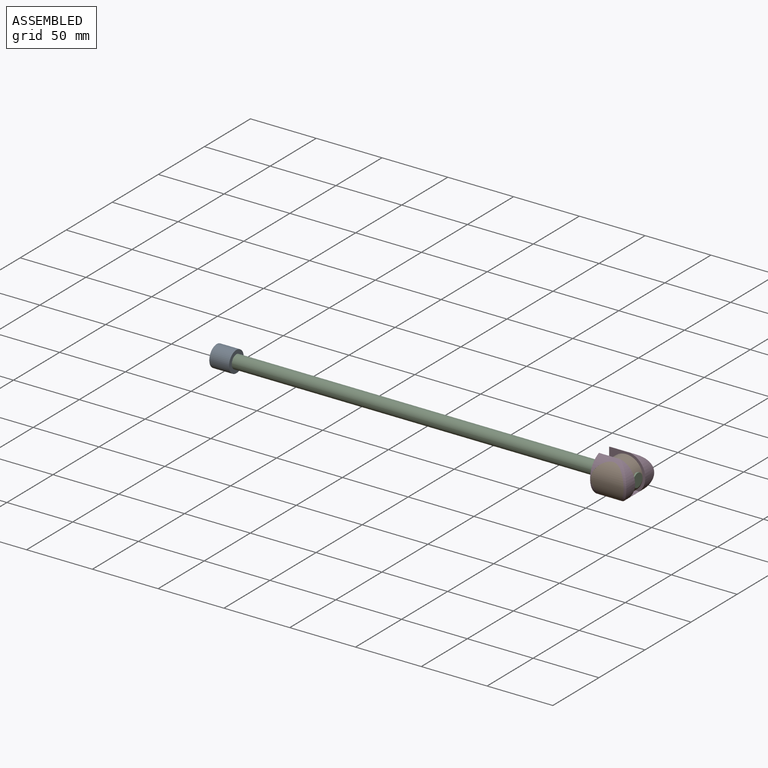
[diagram: assembled view]
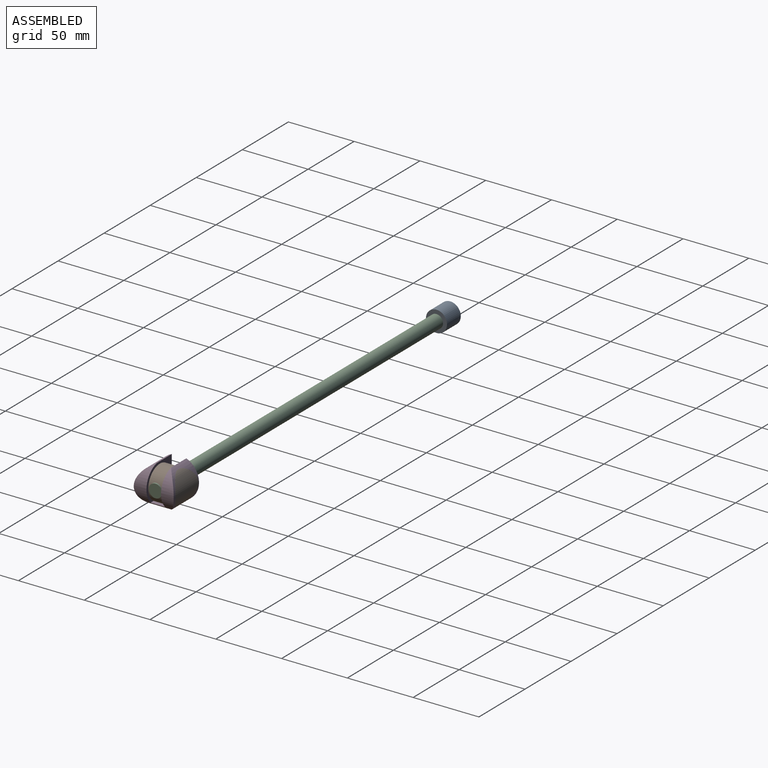
[diagram: assembled view, second angle]
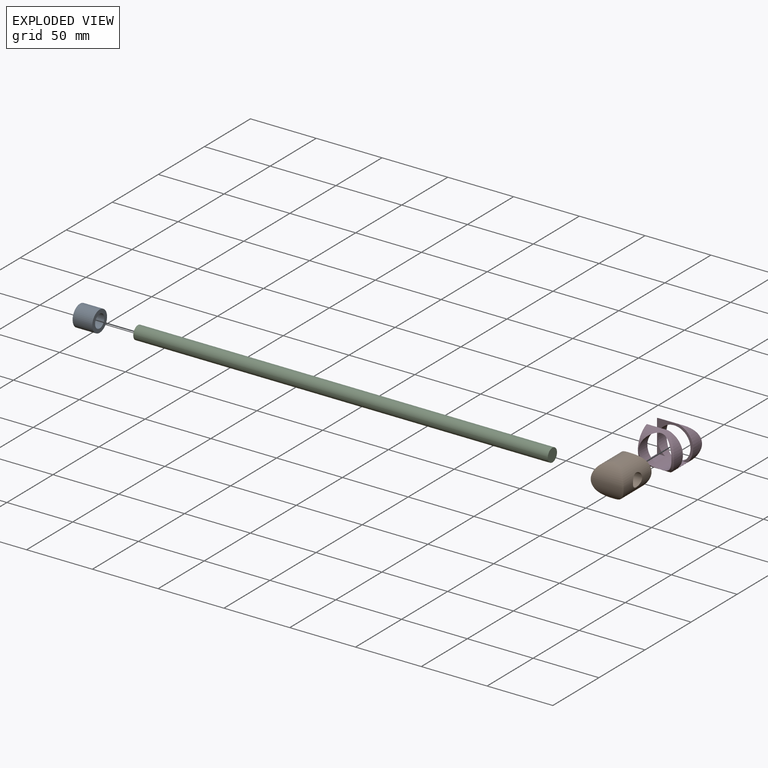
[diagram: exploded view]
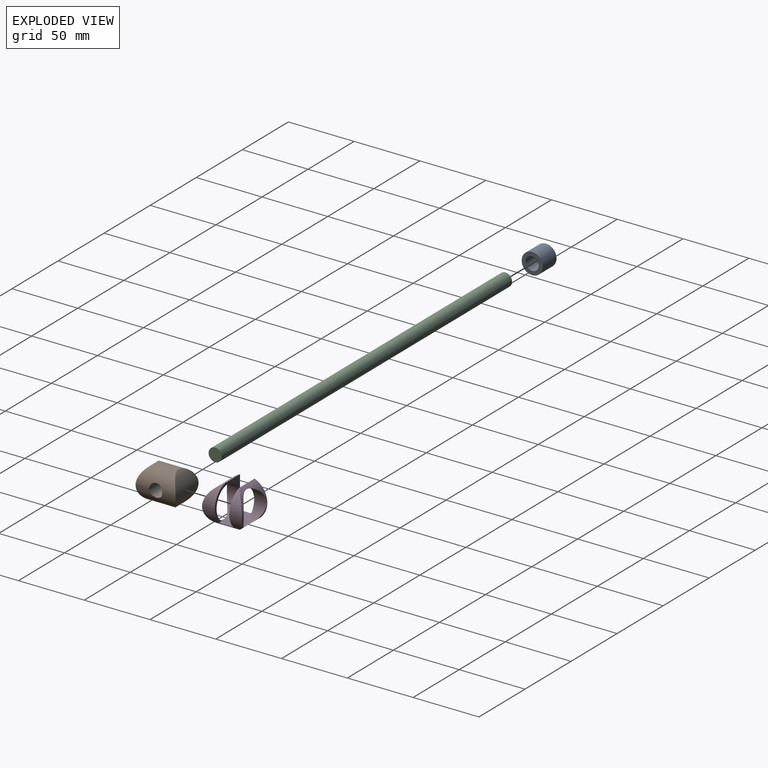
[diagram: exploded view, second angle]
ASSEMBLY  parts=4 mates=3
PART A: 8 faces, bbox 15x16x16 mm
  f0: cylinder r=8mm len=16mm, axis (1,0,0), area 754mm2, adj f1,f6
  f1: plane 16x16mm, normal (-1,0,0), area 201.1mm2, adj f0
  f2: cylinder r=5.03mm len=10mm, axis (-1,0,0), area 147.2mm2, adj f3,f5,f6,f7
  f3: plane 10x1.08mm, normal (0,-1,0), area 10.8mm2, adj f2,f4,f6,f7
  f4: cylinder r=5.03mm len=10mm, axis (-1,0,0), area 147.2mm2, adj f3,f5,f6,f7
  f5: plane 10x1.08mm, normal (0,1,0), area 10.8mm2, adj f2,f4,f6,f7
  f6: plane 16x16mm, normal (1,0,0), area 121.7mm2, adj f0,f2,f3,f4,f5
  f7: plane 10.06x10mm, normal (1,0,0), area 79.4mm2, adj f2,f3,f4,f5
PART B: 4 faces, bbox 25x30.4x25 mm
  f0: cylinder r=5.03mm len=25mm, axis (-1,0,0), area 756.9mm2, adj f3
  f1: cylinder r=15.18mm len=25mm, axis (-1,0,0), area 549.8mm2, adj f3
  f2: cylinder r=15.18mm len=25mm, axis (-1,0,0), area 549.7mm2, adj f3
  f3: cylinder r=12.5mm len=30.37mm, axis (0,1,0), area 1742.9mm2, adj f0,f1,f2
PART C: 6 faces, bbox 315.1x10x10.1 mm
  f0: plane 10.06x10mm, normal (-1,0,0), area 79.4mm2, adj f1,f3,f4,f5
  f1: cylinder r=5.03mm len=315.1mm, axis (-1,0,0), area 4637.8mm2, adj f0,f2,f3,f4
  f2: plane 10.06x10mm, normal (1,0,0), area 79.4mm2, adj f1,f3,f4,f5
  f3: plane 315.1x1.08mm, normal (0,1,0), area 339.9mm2, adj f0,f1,f2,f5
  f4: plane 315.1x1.08mm, normal (0,-1,0), area 339.9mm2, adj f0,f1,f2,f5
  f5: cylinder r=5.03mm len=315.1mm, axis (-1,0,0), area 4637.8mm2, adj f0,f2,f3,f4
PART D: 10 faces, bbox 27.5x30.4x28.7 mm
  f0: cylinder r=15.18mm len=28.65mm, axis (-1,0,0), area 332.6mm2, adj f1,f2,f3,f5,f8
  f1: plane 30.37x28.65mm, normal (-1,0,0), area 440mm2, adj f0,f4,f5,f7,f8,f9
  f2: cylinder r=14.51mm len=30.37mm, axis (0,-1,0), area 586.4mm2, adj f0,f4,f5,f6,f8,f9
  f3: cylinder r=12.51mm len=30.37mm, axis (0,-1,0), area 1195.9mm2, adj f0,f4,f6,f7,f8,f9
  f4: cylinder r=15.18mm len=28.65mm, axis (-1,0,0), area 332.6mm2, adj f1,f2,f3,f5,f9
  f5: plane 12.99x8.92mm, normal (0,0,-1), area 116mm2, adj f0,f1,f2,f4
  f6: plane 11.06x3.21mm, normal (0,0,1), area 35.5mm2, adj f2,f3,f8,f9
  f7: plane 11.06x6.17mm, normal (0,0,1), area 68.2mm2, adj f1,f3,f8,f9
  f8: plane 27.51x24.63mm, normal (0,-1,0), area 149.1mm2, adj f0,f1,f2,f3,f6,f7
  f9: plane 27.51x24.63mm, normal (0,1,0), area 149.1mm2, adj f1,f2,f3,f4,f6,f7
PLACE A t=(149.45,0,0)mm
PLACE B t=(149.3,0,0)mm
PLACE C t=(149.45,0,0)mm
PLACE D t=(149.3,0,0)mm
MATE revolute B.f3 <-> D.f2  axis (0,1,0) through (314.29,-982.03,682.16)mm
MATE fastened C.f1 <-> B.f0  axis (1,0,0) through (326.94,-982.03,682.16)mm
MATE fastened A.f0 <-> C.f1  axis (1,0,0) through (11.84,-982.03,682.16)mm
